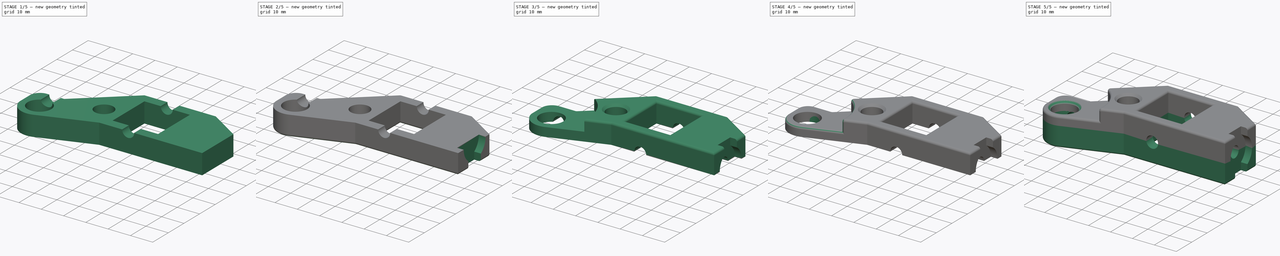
[diagram: build sequence overview — one tinted view per stage of 5, left to right]
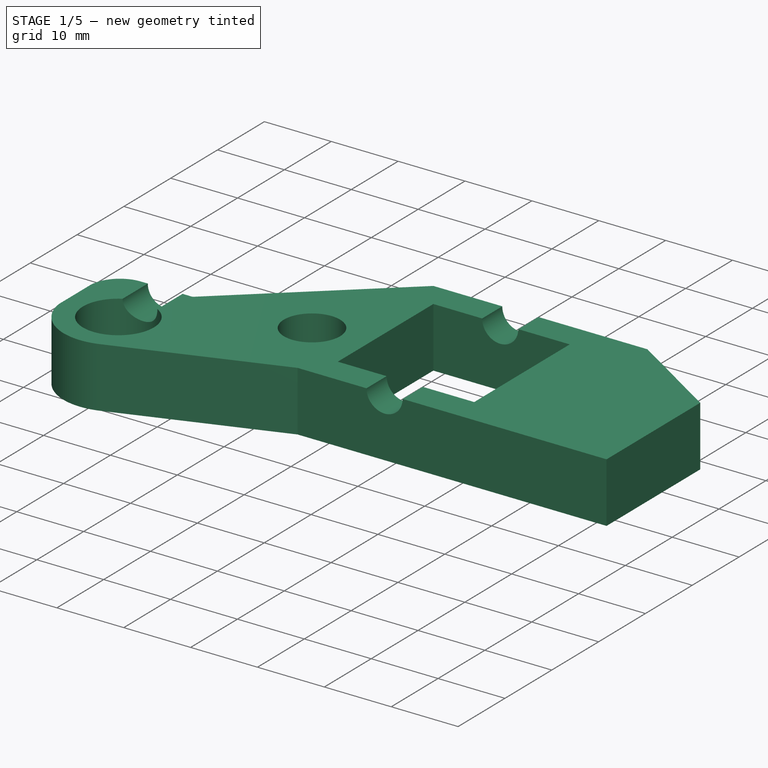
[diagram: stage 1 of 5 — iso view after this stage's code; geometry added in this stage tinted green]
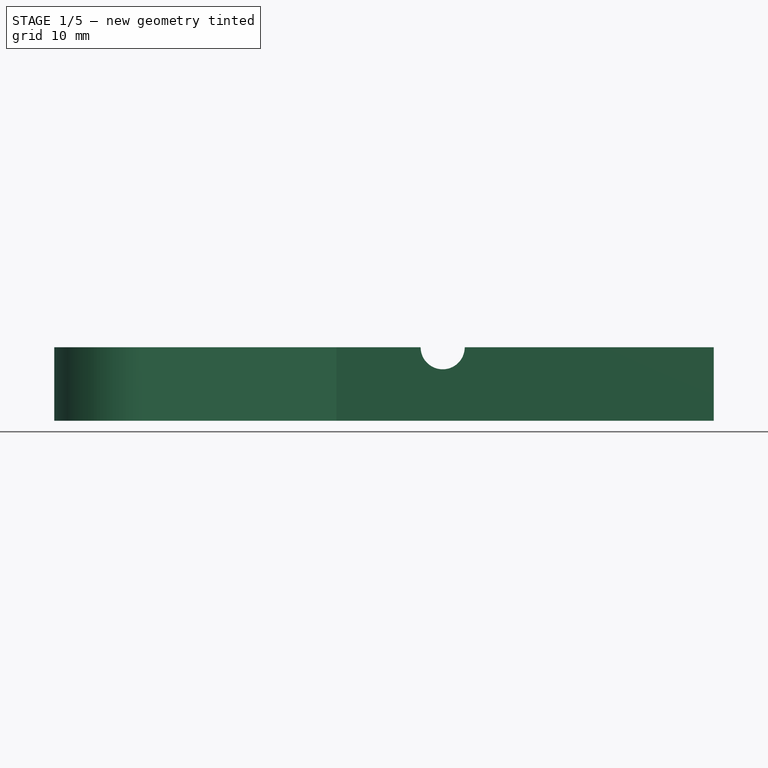
[diagram: stage 1 of 5 — front view after this stage's code; geometry added in this stage tinted green]
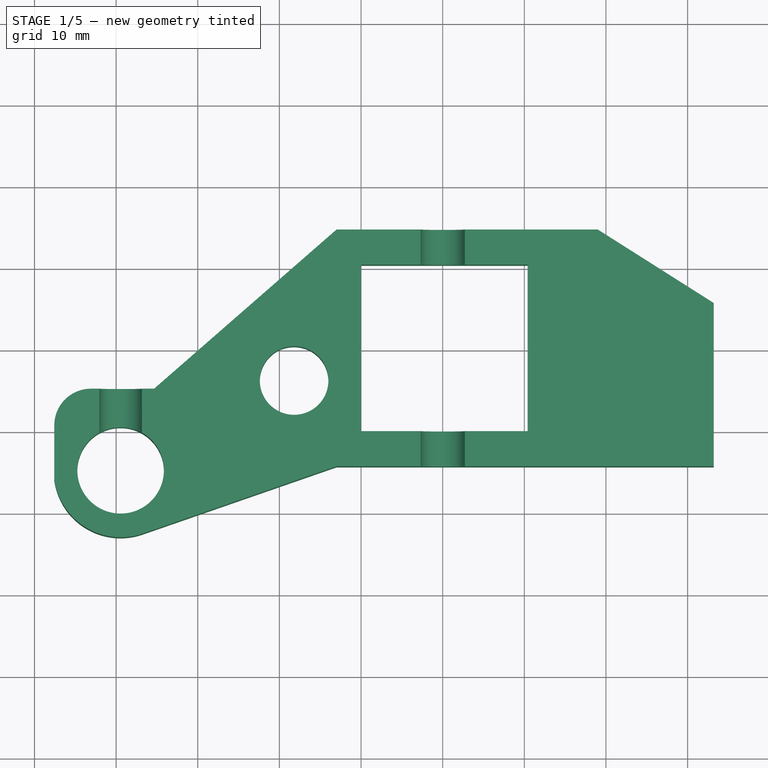
[diagram: stage 1 of 5 — top view after this stage's code; geometry added in this stage tinted green]
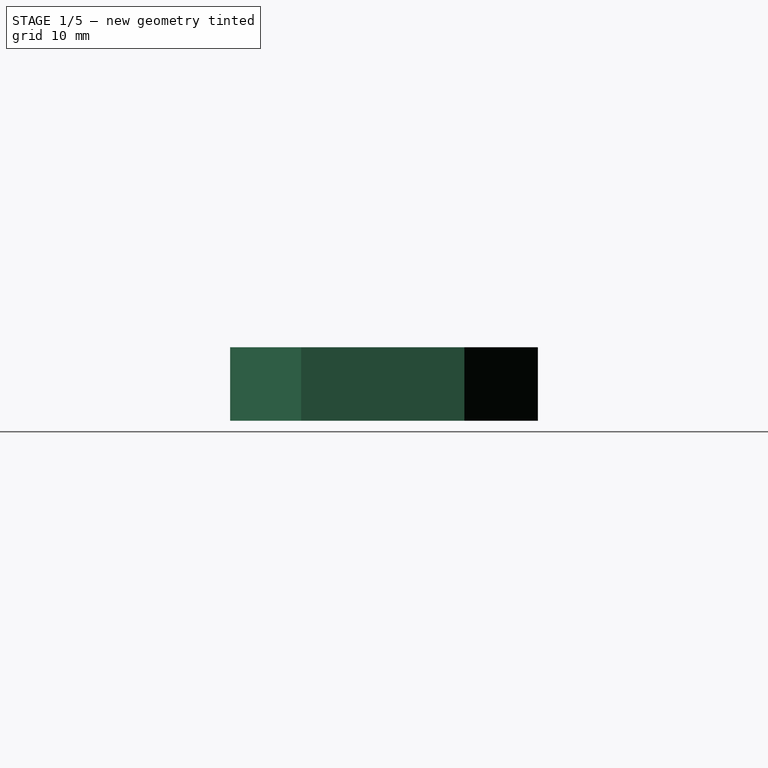
[diagram: stage 1 of 5 — right view after this stage's code; geometry added in this stage tinted green]
FCSTD DOCUMENT  (FreeCAD 0.16R5861 (Git))
Label: y_corner_v2.4
License: All rights reserved
LicenseURL: http://en.wikipedia.org/wiki/All_rights_reserved
objects: Sketcher::SketchObject×11, PartDesign::Pocket×8, PartDesign::Fillet×5, PartDesign::Pad×3, PartDesign::Chamfer×2, Part::Mirroring×1, Part::Feature×1
note: 42 computed .brp shape members not serialized (recipe doc carries the construction recipe); baked Part::Feature solids carry a one-line shape summary decoded from their .brp

FEATURE [Sketcher::SketchObject] Sketch
  sketch-geometry (21):
    g0: Circle CenterX=-8.2 CenterY=6.2 CenterZ=0 NormalX=0 NormalY=0 NormalZ=1 Radius=4.2
    g1: LineSegment StartX=0 StartY=20.4 StartZ=0 EndX=20.4 EndY=20.4 EndZ=0
    g2: LineSegment StartX=20.4 StartY=20.4 StartZ=0 EndX=20.4 EndY=0 EndZ=0
    g3: LineSegment StartX=20.4 StartY=0 StartZ=0 EndX=0 EndY=0 EndZ=0
    g4: LineSegment StartX=0 StartY=0 StartZ=0 EndX=0 EndY=20.4 EndZ=0
    g5: Circle CenterX=-29.45 CenterY=-4.8 CenterZ=0 NormalX=0 NormalY=0 NormalZ=1 Radius=5.3
    g6: LineSegment [constr] StartX=10.2 StartY=20.4 StartZ=0 EndX=10.2 EndY=0 EndZ=0
    g7: LineSegment [constr] StartX=0 StartY=10.2 StartZ=0 EndX=20.4 EndY=10.2 EndZ=0
    g8: LineSegment StartX=-3 StartY=24.7 StartZ=0 EndX=29 EndY=24.7 EndZ=0
    g9: LineSegment StartX=29 StartY=24.7 StartZ=0 EndX=43.2 EndY=15.7 EndZ=0
    g10: LineSegment StartX=43.2 StartY=15.7 StartZ=0 EndX=43.2 EndY=-4.3 EndZ=0
    g11: LineSegment StartX=43.2 StartY=-4.3 StartZ=0 EndX=-3 EndY=-4.3 EndZ=0
    g12: LineSegment StartX=-3 StartY=-4.3 StartZ=0 EndX=-26.8518 EndY=-12.5775 EndZ=0
    g13: LineSegment StartX=-3 StartY=24.7 StartZ=0 EndX=-25.35 EndY=5.2 EndZ=0
    g14: ArcOfCircle CenterX=-29.45 CenterY=-4.8 CenterZ=0 NormalX=0 NormalY=0 NormalZ=1 Radius=8.2 StartAngle=3.2757 EndAngle=5.03479
    g15: LineSegment [constr] StartX=0 StartY=44.345 StartZ=0 EndX=0 EndY=-16.0399 EndZ=0
    g16: LineSegment StartX=-37.5764 StartY=0.705065 StartZ=0 EndX=-37.5764 EndY=-5.89639 EndZ=0
    g17: LineSegment [constr] StartX=-29.45 StartY=18.3299 StartZ=0 EndX=-29.45 EndY=-20.2396 EndZ=0
    g18: LineSegment [constr] StartX=-42.4211 StartY=-4.8 StartZ=0 EndX=-17.1024 EndY=-4.8 EndZ=0
    g19: LineSegment StartX=-33.0814 StartY=5.2 StartZ=0 EndX=-25.35 EndY=5.2 EndZ=0
    g20: ArcOfCircle CenterX=-33.0814 CenterY=0.705065 CenterZ=0 NormalX=0 NormalY=0 NormalZ=1 Radius=4.49494 StartAngle=1.5708 EndAngle=3.14159
  constraints (56):
    c: Coincident(g1,g2)
    c: Coincident(g2,g3)
    c: Coincident(g3,g4)
    c: Coincident(g4,g1)
    c: Horizontal(g1)
    c: Horizontal(g3)
    c: Vertical(g2)
    c: Vertical(g4)
    c: DistanceX(g2,g3) = -20.4
    c: DistanceY(g2,g1) = 20.4
    c: Radius(g0) = 4.2
    c: Radius(g5) = 5.3
    c: PointOnObject(g6,g1)
    c: Vertical(g6)
    c: PointOnObject(g6,g3)
    c: DistanceX(g3,g6) = 10.2
    c: DistanceX(g0,g6) = 18.4
    c: PointOnObject(g7,g4)
    c: PointOnObject(g7,g2)
    c: Horizontal(g7)
    c: DistanceY(g3,g7) = 10.2
    c: DistanceY(g0,g7) = 4
    c: Coincident(g-1,g3)
    c: Horizontal(g8)
    c: Coincident(g8,g9)
    c: Coincident(g9,g10)
    c: Vertical(g10)
    c: Coincident(g10,g11)
    c: Horizontal(g11)
    c: Coincident(g11,g12)
    c: Coincident(g14,g5)
    c: Radius(g14) = 8.2
    c: DistanceX(g6,g10) = 33
    c: DistanceY(g-1,g11) = -4.3
    c: PointOnObject(g15,g-2)
    c: Vertical(g15)
    c: Coincident(g13,g8)
    c: DistanceY(g1,g8) = 4.3
    c: DistanceX(g-1,g11) = -3
    c: DistanceX(g1,g8) = -3
    c: DistanceY(g10) = -20
    c: DistanceX(g8) = 32
    c: Coincident(g14,g12)
    c: Vertical(g16)
    c: Vertical(g17)
    c: Horizontal(g18)
    c: PointOnObject(g5,g18)
    c: PointOnObject(g5,g17)
    c: Horizontal(g19)
    c: Coincident(g19,g13)
    c: Coincident(g16,g14)
    c: Tangent(g19,g20) = 1.5708
    c: Tangent(g16,g20) = -1.5708
    c: DistanceY(g5,g7) = 15
    c: DistanceX(g5,g6) = 39.65
    c: DistanceY(g5,g19) = 10
FEATURE [PartDesign::Pad] Pad
  Length = 9
  Length2 = 100
  Sketch = -> Sketch
  Type = 0
FEATURE [Sketcher::SketchObject] Sketch017
  Placement = pos=(0,5.2,0) rot=(0,0.707107,0.707107;3.14159rad)
  Support = -> Pad [Face9]
  sketch-geometry (1):
    g0: Circle CenterX=29.45 CenterY=9 CenterZ=0 NormalX=0 NormalY=0 NormalZ=1 Radius=2.6
  constraints (3):
    c: Radius(g0) = 2.6
    c: DistanceX(g-1,g0) = 29.45
    c: DistanceY(g-1,g0) = 9
FEATURE [PartDesign::Pocket] Pocket
  Length = 7
  Sketch = -> Sketch017
  Type = 0
FEATURE [Sketcher::SketchObject] Sketch018
  Placement = pos=(0,-4.3,0) rot=(1,0,0;1.5708rad)
  Support = -> Pocket [Face8]
  sketch-geometry (1):
    g0: Circle CenterX=10 CenterY=9 CenterZ=0 NormalX=0 NormalY=0 NormalZ=1 Radius=2.7
  constraints (3):
    c: Radius(g0) = 2.7
    c: DistanceX(g-1,g0) = 10
    c: DistanceY(g-1,g0) = 9
FEATURE [PartDesign::Pocket] Pocket001
  Length = 5
  Sketch = -> Sketch018
  Type = 1
FEATURE [PartDesign::Chamfer] Chamfer
  Base = -> Pocket001 [Edge21]
  Size = 1
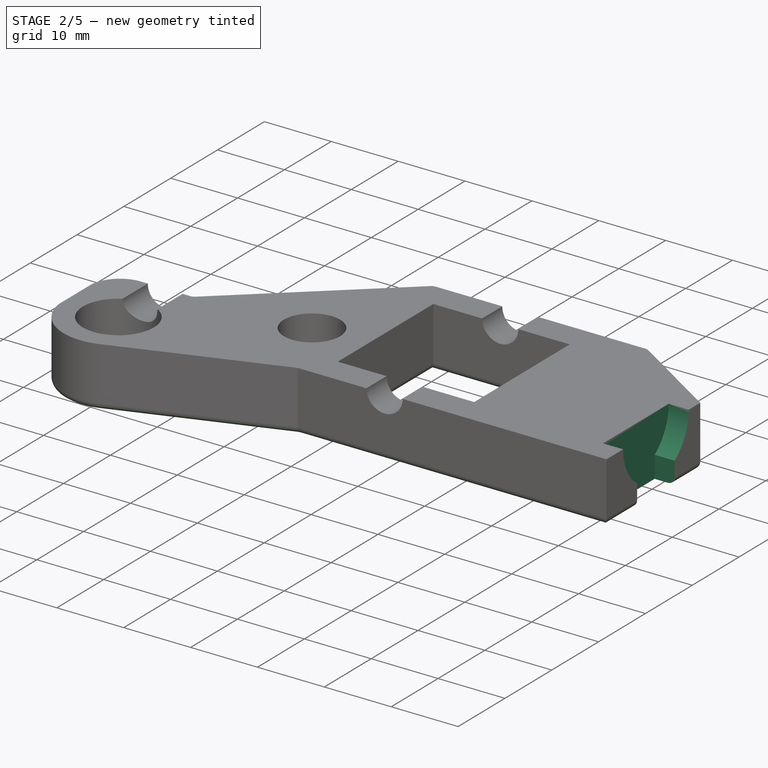
[diagram: stage 2 of 5 — iso view after this stage's code; geometry added in this stage tinted green]
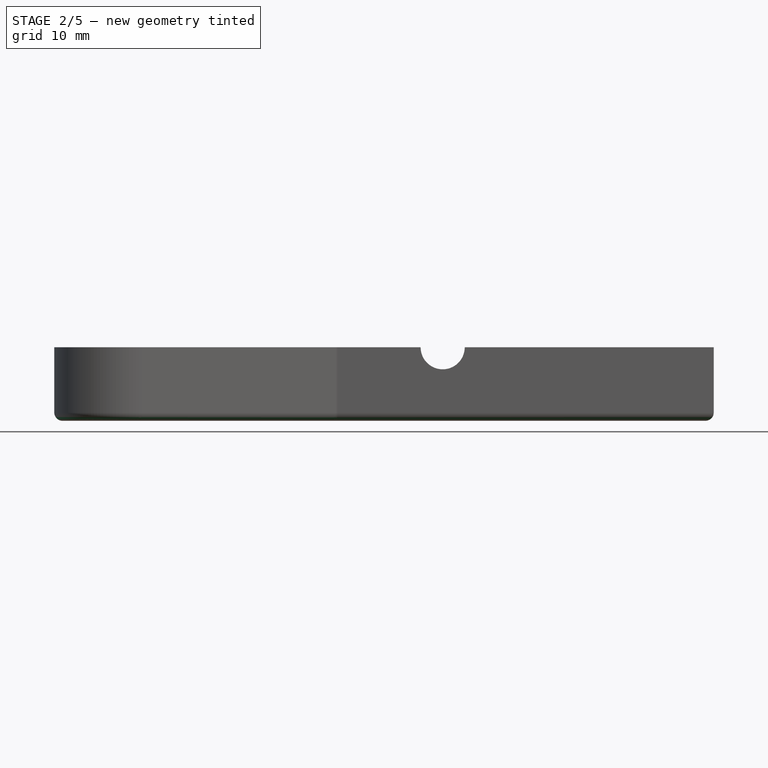
[diagram: stage 2 of 5 — front view after this stage's code; geometry added in this stage tinted green]
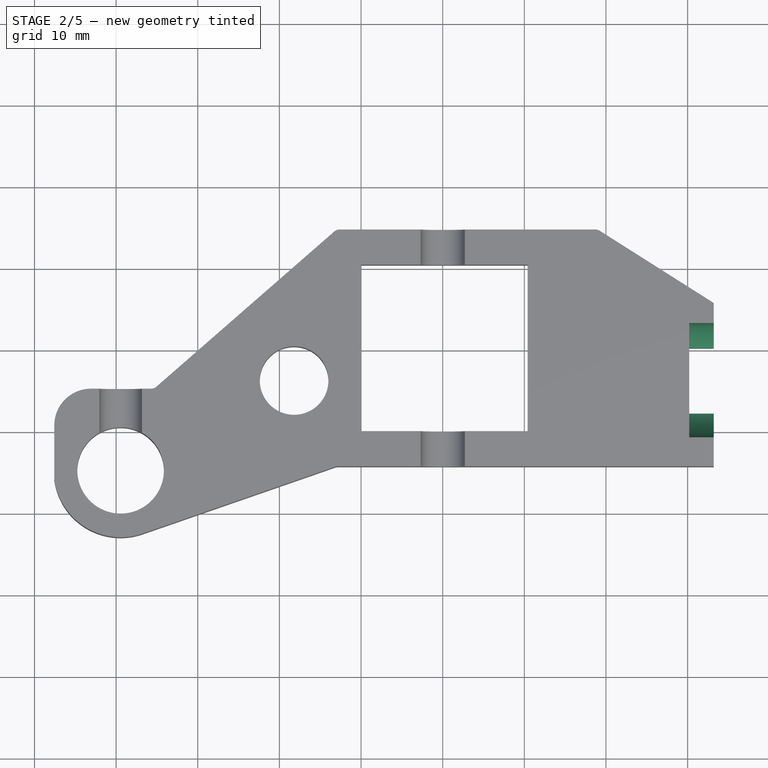
[diagram: stage 2 of 5 — top view after this stage's code; geometry added in this stage tinted green]
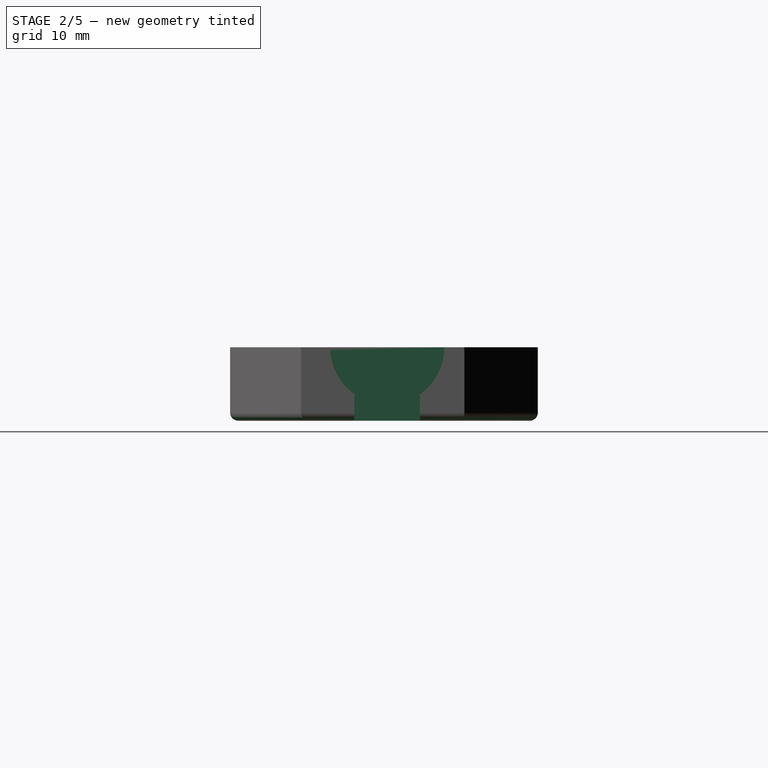
[diagram: stage 2 of 5 — right view after this stage's code; geometry added in this stage tinted green]
FEATURE [PartDesign::Fillet] Fillet
  Base = -> Chamfer [Edge15,Edge14,Edge13,Edge12]
  Radius = 1
FEATURE [PartDesign::Fillet] Fillet001
  Base = -> Fillet [Edge48,Edge31,Edge27,Edge36]
  Radius = 1
FEATURE [PartDesign::Fillet] Fillet002
  Base = -> Fillet001 [Edge5,Edge4,Edge12,Edge14,Edge9,Edge7]
  Radius = 1
FEATURE [Sketcher::SketchObject] Sketch019
  Placement = pos=(43.2,0,0) rot=(0.57735,0.57735,0.57735;2.0944rad)
  Support = -> Fillet002 [Face31]
  sketch-geometry (9):
    g0: LineSegment [constr] StartX=6.2 StartY=22.4432 StartZ=0 EndX=6.2 EndY=14.5 EndZ=0
    g1: ArcOfCircle CenterX=6.24799 CenterY=9 CenterZ=0 NormalX=0 NormalY=0 NormalZ=1 Radius=7 StartAngle=2.17904 EndAngle=4.10414
    g2: LineSegment StartX=2.24799 StartY=19 StartZ=0 EndX=2.24799 EndY=14.7446 EndZ=0
    g3: LineSegment StartX=10.248 StartY=3.25544 StartZ=0 EndX=10.248 EndY=-1 EndZ=0
    g4: LineSegment StartX=2.24799 StartY=19 StartZ=0 EndX=10.248 EndY=19 EndZ=0
    g5: LineSegment StartX=2.2 StartY=-1 StartZ=0 EndX=10.248 EndY=-1 EndZ=0
    g6: ArcOfCircle CenterX=6.24799 CenterY=9 CenterZ=0 NormalX=0 NormalY=0 NormalZ=1 Radius=7 StartAngle=5.32063 EndAngle=7.24574
    g7: LineSegment StartX=2.24799 StartY=3.25544 StartZ=0 EndX=2.2 EndY=-1 EndZ=0
    g8: LineSegment StartX=10.248 StartY=14.7446 StartZ=0 EndX=10.248 EndY=19 EndZ=0
  constraints (27):
    c: Vertical(g0)
    c: Radius(g1) = 7
    c: Vertical(g3)
    c: Vertical(g2)
    c: Coincident(g2,g4)
    c: Horizontal(g4)
    c: Coincident(g3,g5)
    c: Coincident(g7,g5)
    c: Horizontal(g5)
    c: DistanceX(g4,g1) = -4
    c: DistanceX(g1,g2) = -4
    c: Coincident(g6,g3)
    c: PointOnObject(g1,g2)
    c: Equal(g1,g6)
    c: PointOnObject(g1,g2)
    c: Coincident(g6,g3)
    c: Coincident(g1,g6)
    c: Coincident(g1,g7)
    c: Coincident(g1,g2)
    c: Vertical(g8)
    c: Coincident(g4,g8)
    c: Coincident(g6,g8)
    c: DistanceX(g1,g3) = 4
    c: DistanceY(g4,g1) = -10
    c: DistanceY(g3,g1) = 10
    c: DistanceY(g-1,g1) = 9
    c: DistanceX(g-1,g1) = 6.24799
FEATURE [PartDesign::Pocket] Pocket002
  Length = 3
  Sketch = -> Sketch019
  Type = 0
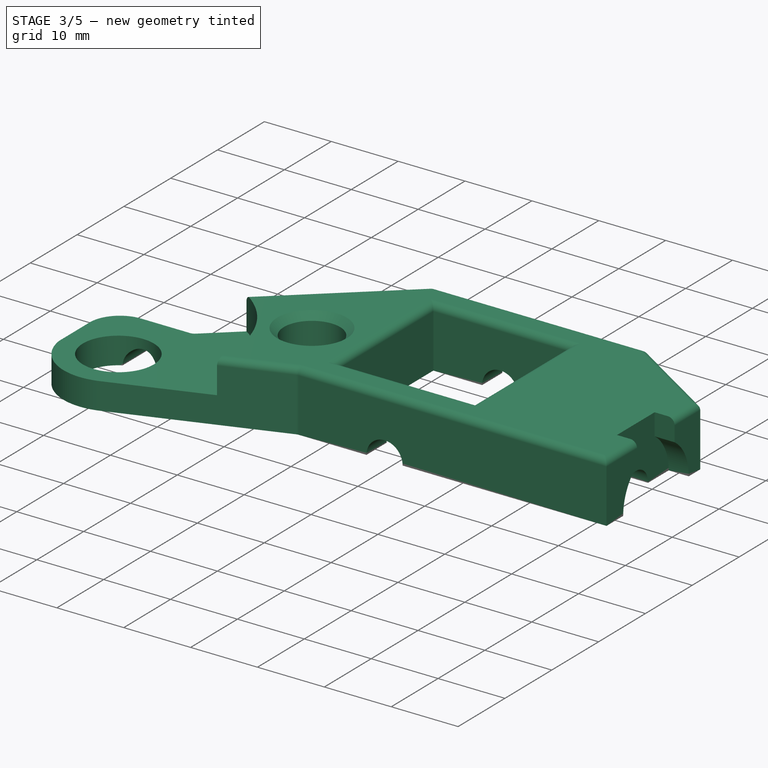
[diagram: stage 3 of 5 — iso view after this stage's code; geometry added in this stage tinted green]
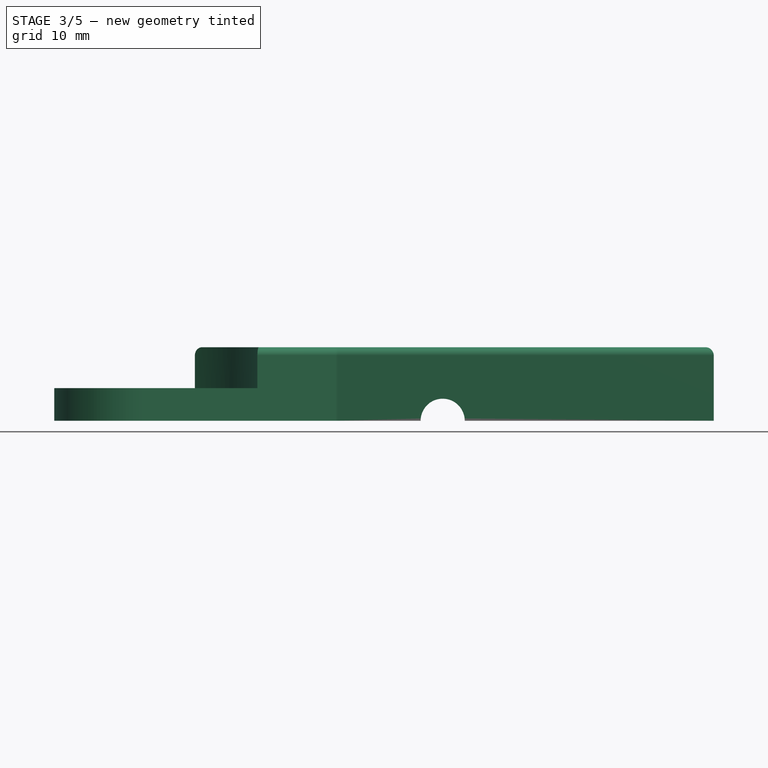
[diagram: stage 3 of 5 — front view after this stage's code; geometry added in this stage tinted green]
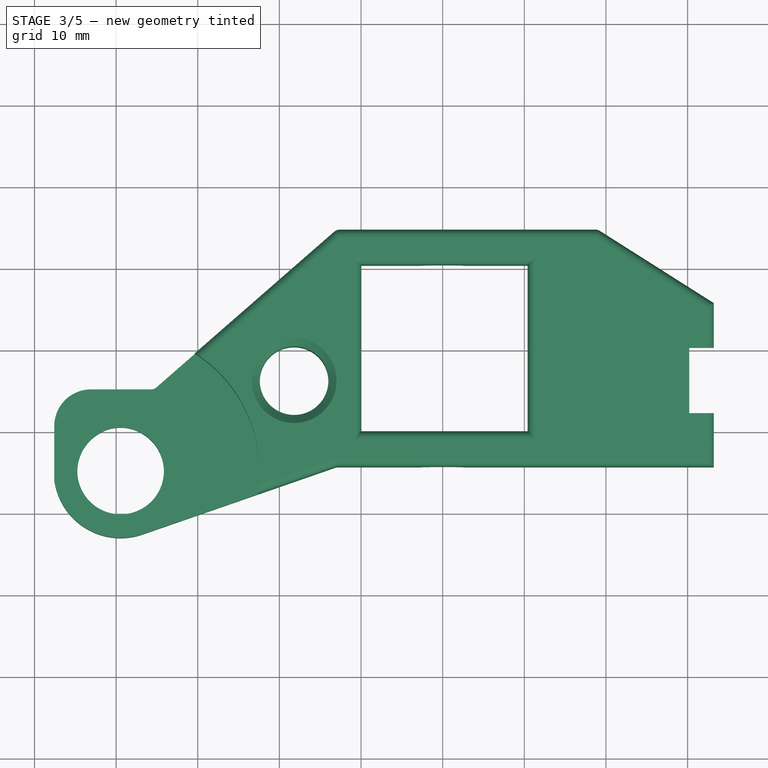
[diagram: stage 3 of 5 — top view after this stage's code; geometry added in this stage tinted green]
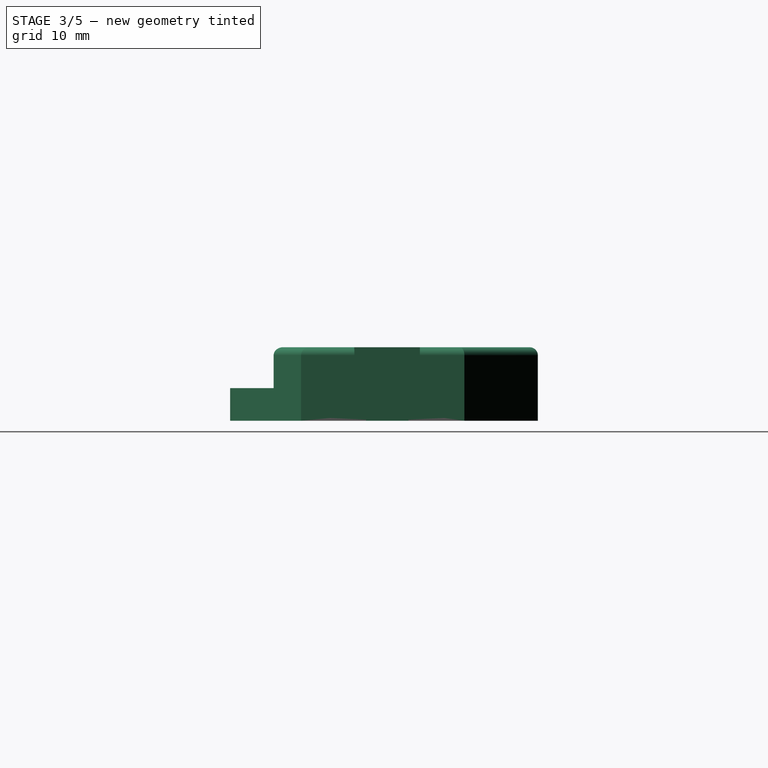
[diagram: stage 3 of 5 — right view after this stage's code; geometry added in this stage tinted green]
FEATURE [Sketcher::SketchObject] Sketch020
  ExternalGeometry = -> [Pocket002]
  Placement = pos=(40.2,0,0) rot=(0.57735,0.57735,0.57735;2.0944rad)
  Support = -> Pocket002 [Face11]
  sketch-geometry (1):
    g0: Circle CenterX=6.24799 CenterY=9 CenterZ=0 NormalX=0 NormalY=0 NormalZ=1 Radius=2.6
  constraints (2):
    c: Radius(g0) = 2.6
    c: Coincident(g0,g-3)
FEATURE [PartDesign::Pocket] Pocket003
  Length = 6
  Sketch = -> Sketch020
  Type = 0
FEATURE [Part::Mirroring] Part__Mirroring  label="Pocket003 (Mirror #1)"
  Base = (0,0,9)
  Normal = (0,0,1)
  Source = -> Pocket003
FEATURE [Sketcher::SketchObject] Sketch021
  ExternalGeometry = -> [Part__Mirroring]
  Placement = pos=(0,0,18) rot=(0,0,1;0rad)
  Support = -> Part__Mirroring [Face1]
  sketch-geometry (1):
    g0: Circle CenterX=-29.45 CenterY=-4.8 CenterZ=0 NormalX=0 NormalY=0 NormalZ=1 Radius=17
  constraints (2):
    c: Coincident(g0,g-4)
    c: Radius(g0) = 17
FEATURE [PartDesign::Pocket] Pocket004
  Length = 5
  Sketch = -> Sketch021
  Type = 0
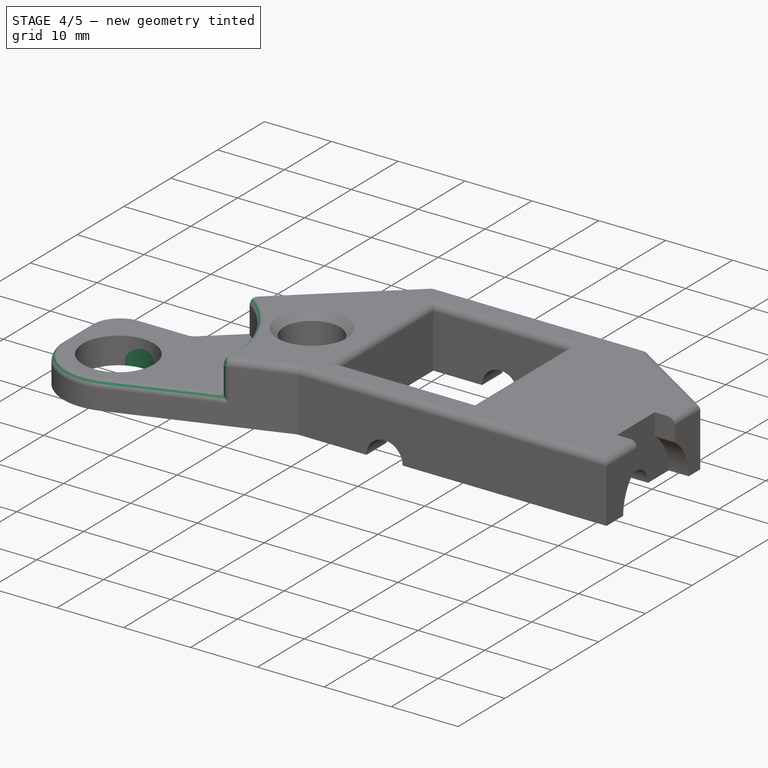
[diagram: stage 4 of 5 — iso view after this stage's code; geometry added in this stage tinted green]
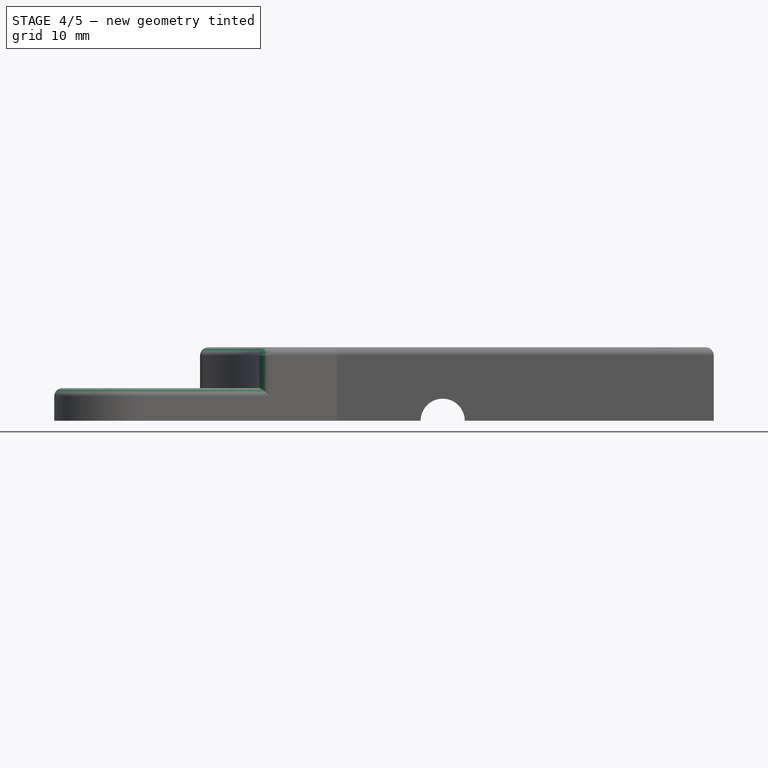
[diagram: stage 4 of 5 — front view after this stage's code; geometry added in this stage tinted green]
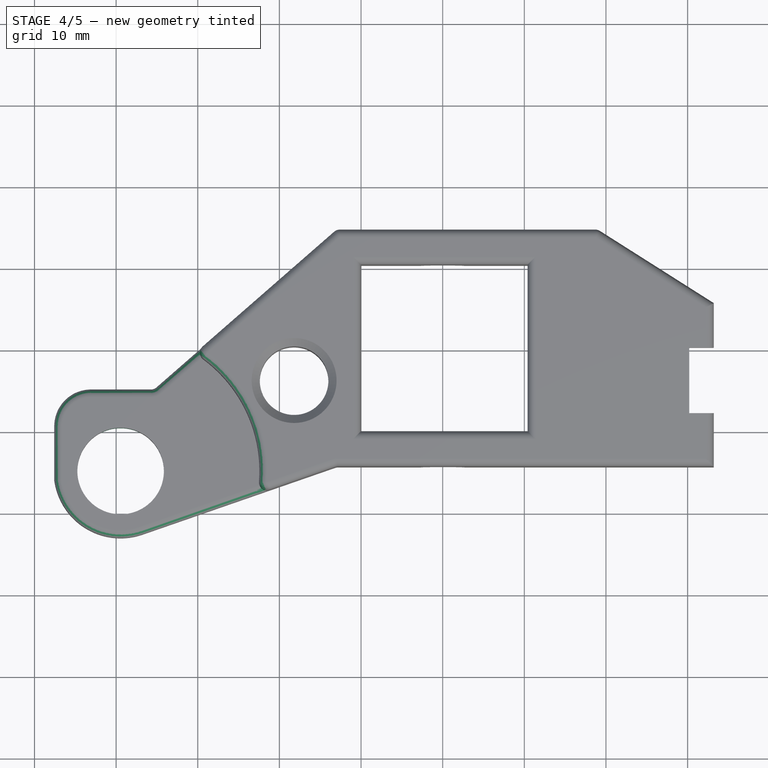
[diagram: stage 4 of 5 — top view after this stage's code; geometry added in this stage tinted green]
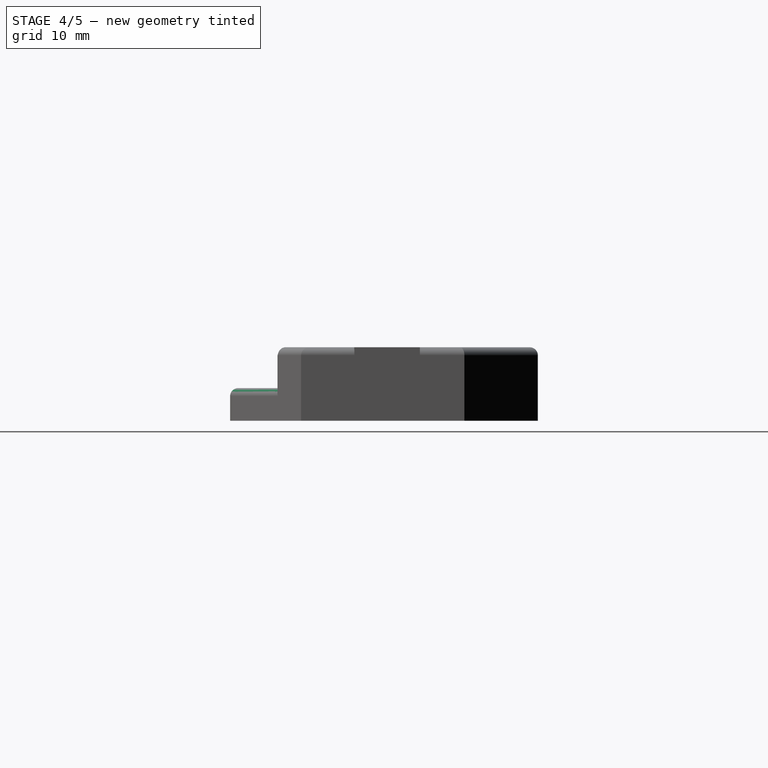
[diagram: stage 4 of 5 — right view after this stage's code; geometry added in this stage tinted green]
FEATURE [PartDesign::Fillet] Fillet003
  Base = -> Pocket004 [Edge2]
  Radius = 1
FEATURE [PartDesign::Fillet] Fillet004
  Base = -> Fillet003 [Edge136,Edge137]
  Radius = 1
FEATURE [Sketcher::SketchObject] Sketch023
  ExternalGeometry = -> [Fillet004]
  Placement = pos=(0,5.2,0) rot=(0,0.707107,0.707107;3.14159rad)
  Support = -> Fillet004 [Face9]
  sketch-geometry (2):
    g0: ArcOfCircle CenterX=29.45 CenterY=9 CenterZ=0 NormalX=0 NormalY=0 NormalZ=1 Radius=2.6 StartAngle=0 EndAngle=3.14159
    g1: LineSegment StartX=26.85 StartY=9 StartZ=0 EndX=32.05 EndY=9 EndZ=0
  constraints (5):
    c: Coincident(g0,g-3)
    c: Coincident(g0,g-3)
    c: Coincident(g0,g-3)
    c: Coincident(g1,g0)
    c: Coincident(g1,g-3)
FEATURE [PartDesign::Pad] Pad002
  Length = 10
  Length2 = 100
  Reversed = true
  Sketch = -> Sketch023
  Type = 0
FEATURE [Sketcher::SketchObject] Sketch024
  ExternalGeometry = -> [Pad002]
  Placement = pos=(0,0,13) rot=(0,0,1;0rad)
  Support = -> Pad002 [Face7]
  sketch-geometry (1):
    g0: Circle CenterX=-29.45 CenterY=-4.8 CenterZ=0 NormalX=0 NormalY=0 NormalZ=1 Radius=5.3
  constraints (2):
    c: Coincident(g0,g-3)
    c: Equal(g0,g-3)
FEATURE [PartDesign::Pocket] Pocket005
  Length = 5
  Sketch = -> Sketch024
  Type = 1
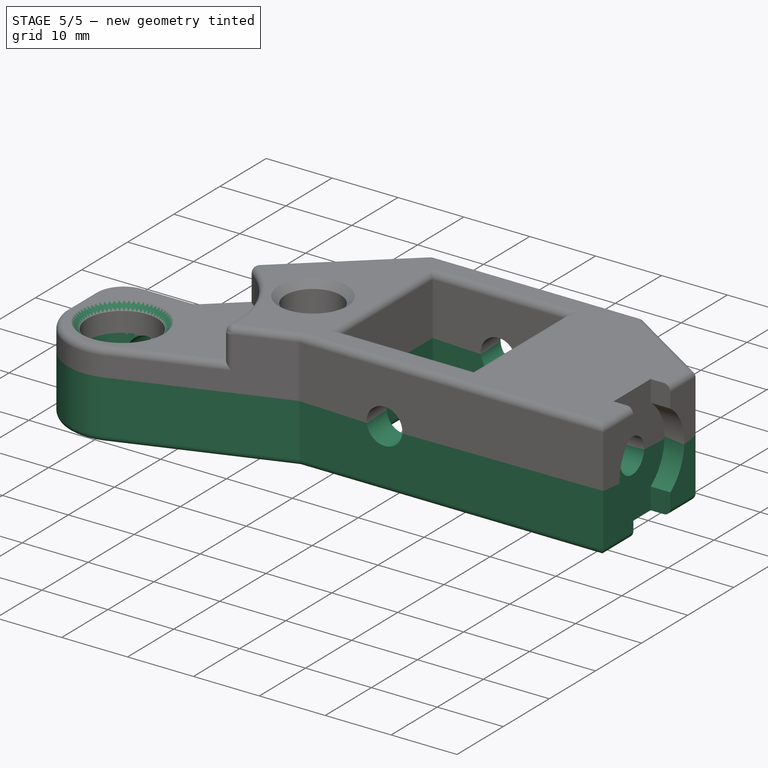
[diagram: stage 5 of 5 — iso view after this stage's code; geometry added in this stage tinted green]
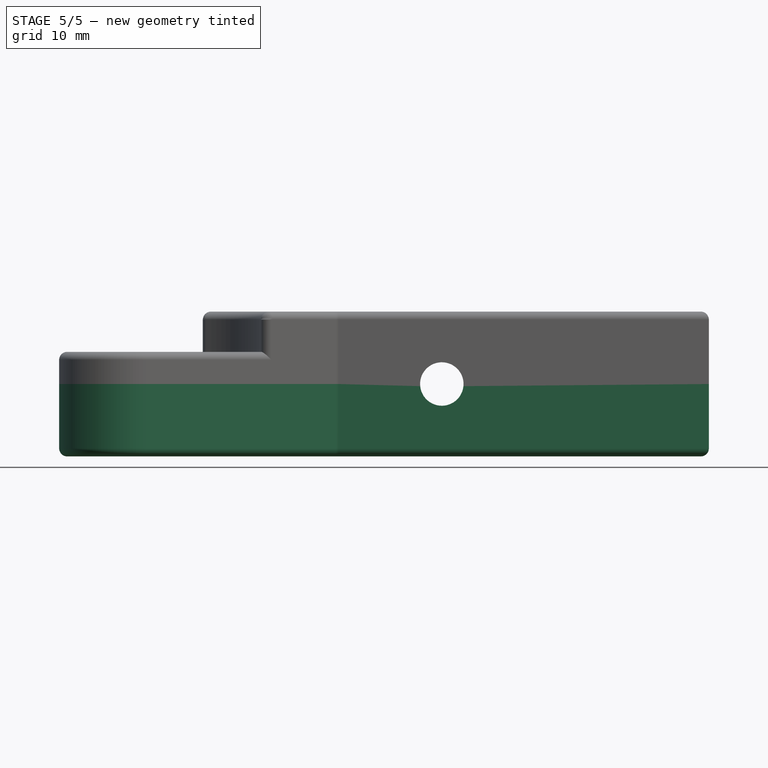
[diagram: stage 5 of 5 — front view after this stage's code; geometry added in this stage tinted green]
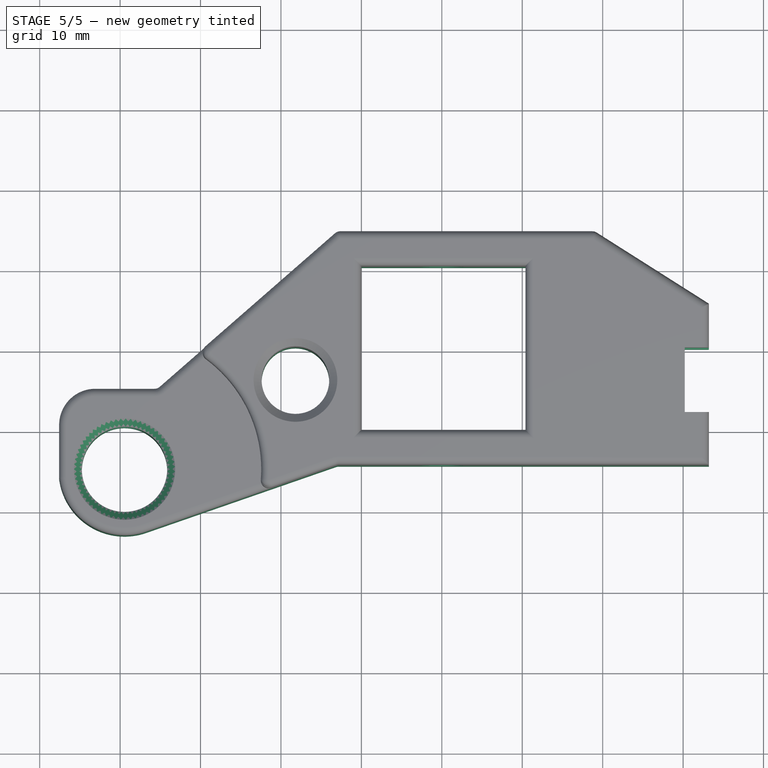
[diagram: stage 5 of 5 — top view after this stage's code; geometry added in this stage tinted green]
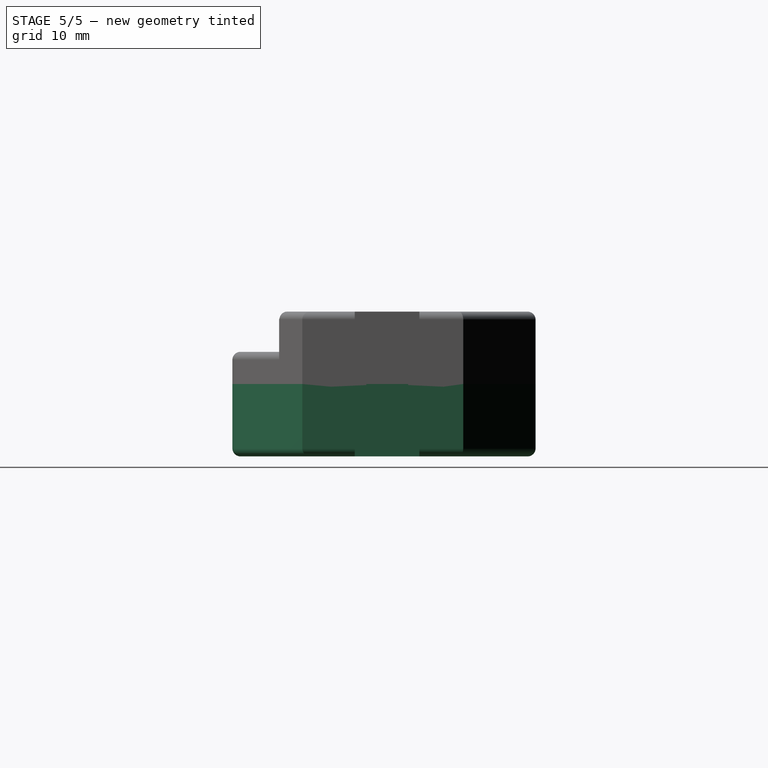
[diagram: stage 5 of 5 — right view after this stage's code; geometry added in this stage tinted green]
FEATURE [Sketcher::SketchObject] Sketch022
  ExternalGeometry = -> [Pocket003]
  Placement = pos=(0,5.2,0) rot=(0,0.707107,0.707107;3.14159rad)
  Support = -> Pocket003 [Face27]
  sketch-geometry (2):
    g0: ArcOfCircle CenterX=29.45 CenterY=9 CenterZ=0 NormalX=0 NormalY=0 NormalZ=1 Radius=2.6 StartAngle=3.14159 EndAngle=6.28319
    g1: LineSegment StartX=26.85 StartY=9 StartZ=0 EndX=32.05 EndY=9 EndZ=0
  constraints (5):
    c: Coincident(g0,g-3)
    c: Coincident(g0,g-3)
    c: Coincident(g0,g-3)
    c: Coincident(g1,g0)
    c: Coincident(g1,g0)
FEATURE [PartDesign::Pad] Pad001
  Length = 10
  Length2 = 100
  Reversed = true
  Sketch = -> Sketch022
  Type = 0
FEATURE [Sketcher::SketchObject] Sketch025
  ExternalGeometry = -> [Pad001]
  Placement = pos=(0,0,0) rot=(1,0,0;3.14159rad)
  Support = -> Pad001 [Face1]
  sketch-geometry (1):
    g0: Circle CenterX=-29.45 CenterY=4.8 CenterZ=0 NormalX=0 NormalY=0 NormalZ=1 Radius=5.3
  constraints (2):
    c: Coincident(g0,g-3)
    c: Equal(g-3,g0)
FEATURE [PartDesign::Pocket] Pocket006
  Length = 5
  Sketch = -> Sketch025
  Type = 1
FEATURE [Sketcher::SketchObject] Sketch026
  ExternalGeometry = -> [Pocket006]
  Placement = pos=(0,5.2,0) rot=(0,0.707107,0.707107;3.14159rad)
  Support = -> Pocket006 [Face29]
  sketch-geometry (2):
    g0: Circle CenterX=29.45 CenterY=6.4 CenterZ=0 NormalX=0 NormalY=0 NormalZ=1 Radius=2.6
    g1: LineSegment [constr] StartX=29.45 StartY=6.4 StartZ=0 EndX=29.45 EndY=9 EndZ=0
  constraints (5):
    c: PointOnObject(g-3,g0)
    c: Equal(g-3,g0)
    c: Coincident(g1,g0)
    c: Coincident(g1,g-3)
    c: Vertical(g1)
FEATURE [PartDesign::Pocket] Pocket007
  Length = 10
  Sketch = -> Sketch026
  Type = 0
FEATURE [PartDesign::Chamfer] Chamfer001
  Base = -> Pocket005 [Edge68]
  Size = 1
FEATURE [Part::Feature] Chamfer001001  label="Chamfer002"
  shape: bbox 81.45 x 38.3 x 9.006 mm, 65 faces (baked)
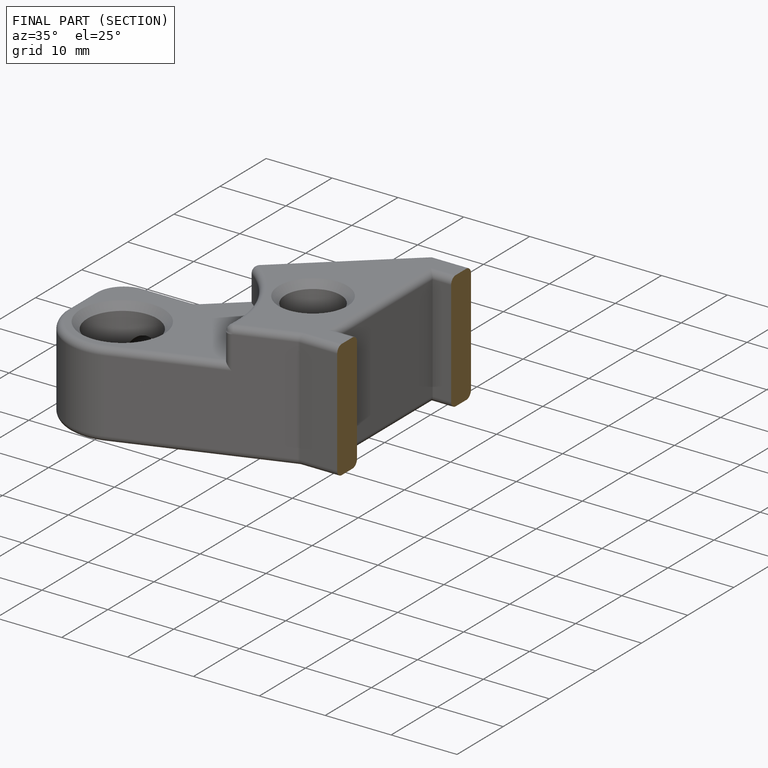
[diagram: finished part — half-section view (interior)]
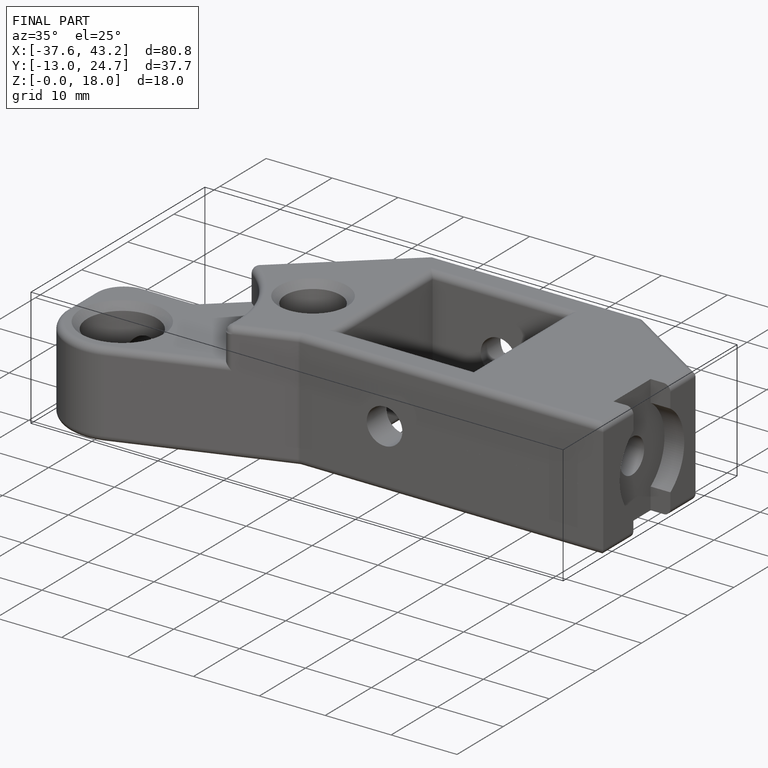
[diagram: finished part — iso view with bounding-box wireframe]
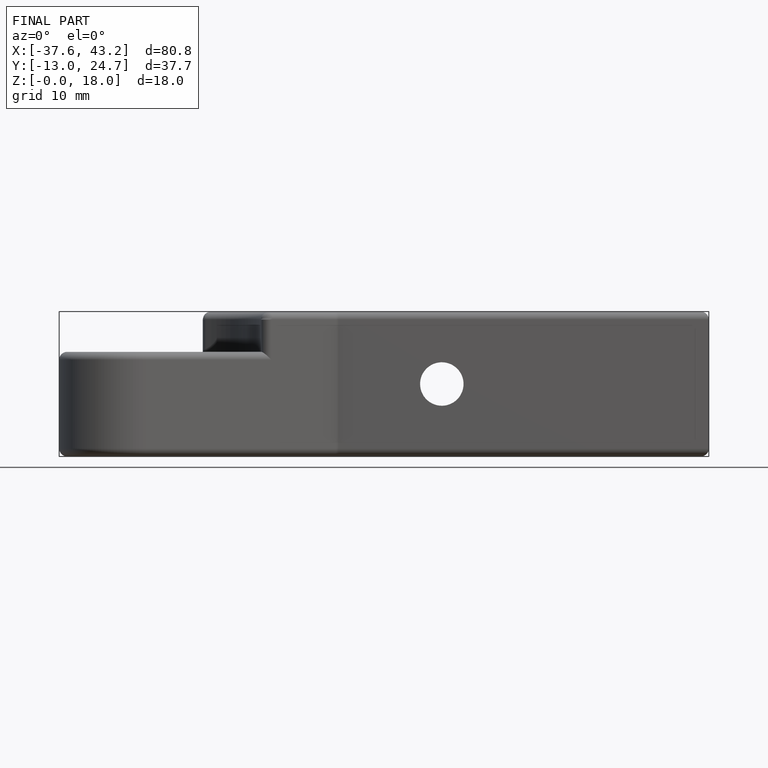
[diagram: finished part — front view with bounding-box wireframe]
